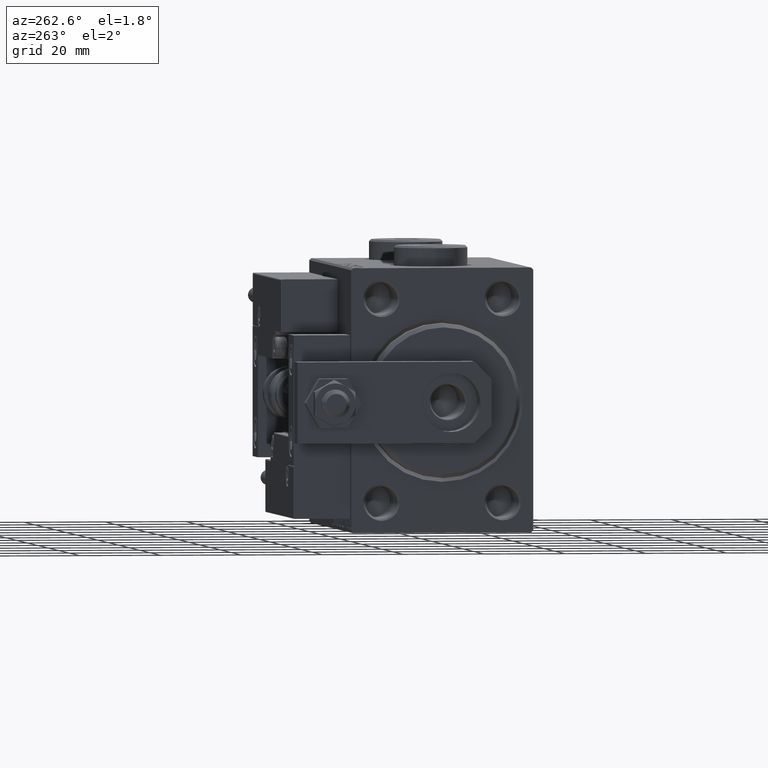
[diagram: clean part render]
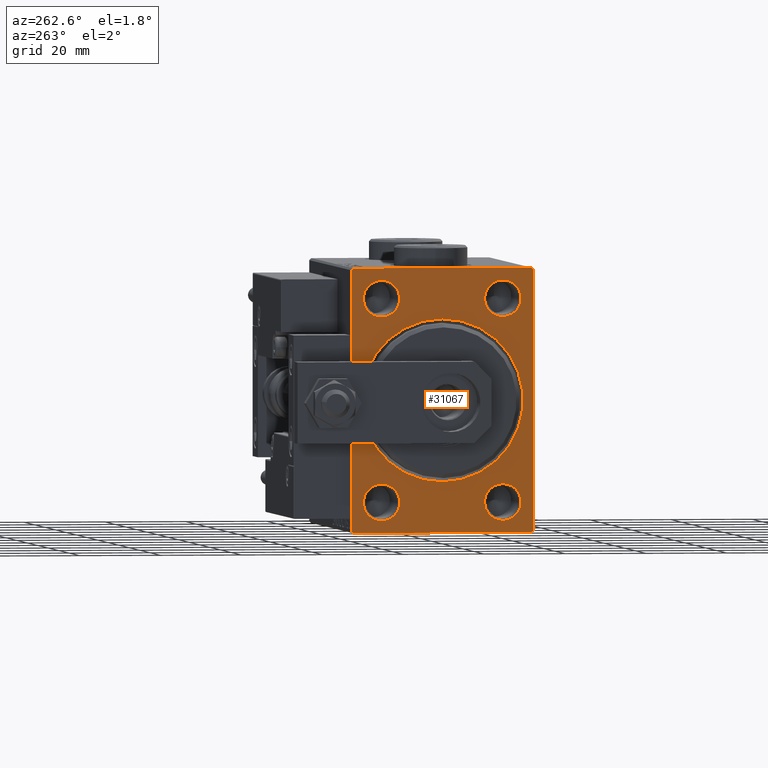
[diagram: same view with one face highlighted and labeled with its STEP entity id]
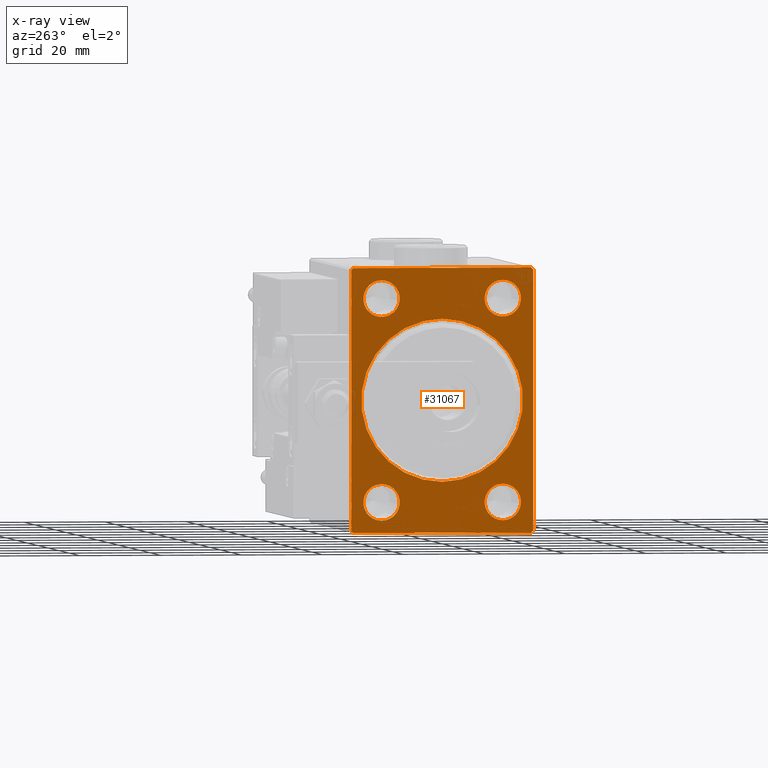
[diagram: x-ray of the same camera — body ghosted, the highlighted face saturated]
A machine part, auxiliary view. The second image highlights one B-rep face of the part: STEP entity #31067.
The next image is the same camera in x-ray: the body ghosted, the highlighted face saturated — about 0% of this face is hidden behind the body in this view.
In plain terms, the highlighted planar face has unit normal (1, 0, 0).
Its self-contained STEP definition (entity closure, byte-faithful):
#363 = VERTEX_POINT ( 'NONE', #7074 ) ;
#1055 = VERTEX_POINT ( 'NONE', #15444 ) ;
#1280 = CARTESIAN_POINT ( 'NONE',  ( 0.000000000000000000, -15.00000000000000000, -20.50000000000001066 ) ) ;
#1710 = VECTOR ( 'NONE', #49773, 1000.000000000000114 ) ;
#1906 = AXIS2_PLACEMENT_3D ( 'NONE', #44819, #8399, #30466 ) ;
#1917 = LINE ( 'NONE', #13073, #1710 ) ;
#2313 = AXIS2_PLACEMENT_3D ( 'NONE', #47783, #51794, #22367 ) ;
#3246 = CARTESIAN_POINT ( 'NONE',  ( 0.000000000000000000, 22.50000000000000711, -32.00000000000002132 ) ) ;
#3462 = DIRECTION ( 'NONE',  ( 1.000000000000000000, 0.000000000000000000, 0.000000000000000000 ) ) ;
#3847 = DIRECTION ( 'NONE',  ( 0.000000000000000000, 0.000000000000000000, -1.000000000000000000 ) ) ;
#4089 = CARTESIAN_POINT ( 'NONE',  ( 0.000000000000000000, 22.00000000000000711, -32.50000000000000711 ) ) ;
#4400 = AXIS2_PLACEMENT_3D ( 'NONE', #25804, #26063, #17825 ) ;
#4412 = DIRECTION ( 'NONE',  ( 0.000000000000000000, 0.000000000000000000, -1.000000000000000000 ) ) ;
#4414 = LINE ( 'NONE', #25146, #32167 ) ;
#5471 = DIRECTION ( 'NONE',  ( 0.000000000000000000, -1.067522139062650425E-16, 1.000000000000000000 ) ) ;
#5815 = VECTOR ( 'NONE', #50764, 1000.000000000000000 ) ;
#7074 = CARTESIAN_POINT ( 'NONE',  ( 0.000000000000000000, 15.00000000000000178, -20.49999999999996803 ) ) ;
#7340 = CARTESIAN_POINT ( 'NONE',  ( 0.000000000000000000, 15.00000000000000178, 25.00000000000000000 ) ) ;
#7515 = CIRCLE ( 'NONE', #49973, 4.500000000000031974 ) ;
#7516 = ORIENTED_EDGE ( 'NONE', *, *, #44080, .T. ) ;
#7904 = CARTESIAN_POINT ( 'NONE',  ( 0.000000000000000000, -15.00000000000000000, 20.50000000000001066 ) ) ;
#7983 = VERTEX_POINT ( 'NONE', #42472 ) ;
#8399 = DIRECTION ( 'NONE',  ( 1.000000000000000000, 0.000000000000000000, 0.000000000000000000 ) ) ;
#8602 = DIRECTION ( 'NONE',  ( 0.000000000000000000, 0.000000000000000000, -1.000000000000000000 ) ) ;
#8675 = CIRCLE ( 'NONE', #38428, 4.500000000000017764 ) ;
#9036 = PLANE ( 'NONE',  #34970 ) ;
#9304 = DIRECTION ( 'NONE',  ( 0.000000000000000000, 0.000000000000000000, -1.000000000000000000 ) ) ;
#9741 = DIRECTION ( 'NONE',  ( 1.000000000000000000, 0.000000000000000000, 0.000000000000000000 ) ) ;
#10082 = LINE ( 'NONE', #18332, #5815 ) ;
#10535 = CARTESIAN_POINT ( 'NONE',  ( 0.000000000000000000, 15.00000000000000178, -29.50000000000003197 ) ) ;
#10903 = AXIS2_PLACEMENT_3D ( 'NONE', #41849, #16849, #8602 ) ;
#10917 = CARTESIAN_POINT ( 'NONE',  ( 0.000000000000000000, 15.00000000000000178, 25.00000000000000000 ) ) ;
#10977 = EDGE_CURVE ( 'NONE', #30756, #37993, #47992, .T. ) ;
#11330 = DIRECTION ( 'NONE',  ( 1.000000000000000000, 0.000000000000000000, 0.000000000000000000 ) ) ;
#11816 = CARTESIAN_POINT ( 'NONE',  ( 0.000000000000000000, 0.000000000000000000, 0.000000000000000000 ) ) ;
#12076 = CARTESIAN_POINT ( 'NONE',  ( 0.000000000000000000, -15.00000000000000000, 29.49999999999999289 ) ) ;
#12529 = EDGE_CURVE ( 'NONE', #1055, #32353, #43790, .T. ) ;
#12749 = CARTESIAN_POINT ( 'NONE',  ( 0.000000000000000000, 0.000000000000000000, 0.000000000000000000 ) ) ;
#13073 = CARTESIAN_POINT ( 'NONE',  ( 0.000000000000000000, -22.49999999999999289, 31.99999999999998579 ) ) ;
#13203 = CARTESIAN_POINT ( 'NONE',  ( 0.000000000000000000, 0.000000000000000000, 0.000000000000000000 ) ) ;
#13333 = CIRCLE ( 'NONE', #2313, 4.499999999999990230 ) ;
#13387 = EDGE_CURVE ( 'NONE', #7983, #39284, #49954, .T. ) ;
#13530 = LINE ( 'NONE', #17254, #39169 ) ;
#13914 = CARTESIAN_POINT ( 'NONE',  ( 0.000000000000000000, -21.99999999999999289, -32.50000000000000711 ) ) ;
#14090 = ORIENTED_EDGE ( 'NONE', *, *, #37005, .F. ) ;
#14185 = VECTOR ( 'NONE', #33989, 1000.000000000000000 ) ;
#14408 = EDGE_CURVE ( 'NONE', #17493, #42669, #13333, .T. ) ;
#14433 = DIRECTION ( 'NONE',  ( -0.000000000000000000, -0.7071067811865524577, 0.7071067811865426878 ) ) ;
#14846 = DIRECTION ( 'NONE',  ( 1.000000000000000000, 0.000000000000000000, 0.000000000000000000 ) ) ;
#14954 = LINE ( 'NONE', #3246, #43106 ) ;
#15211 = DIRECTION ( 'NONE',  ( 0.000000000000000000, -0.7071067811865474617, -0.7071067811865474617 ) ) ;
#15410 = EDGE_LOOP ( 'NONE', ( #38435, #47677 ) ) ;
#15435 = DIRECTION ( 'NONE',  ( 0.000000000000000000, 0.000000000000000000, -1.000000000000000000 ) ) ;
#15444 = CARTESIAN_POINT ( 'NONE',  ( 0.000000000000000000, -22.49999999999999289, 31.99999999999998579 ) ) ;
#16349 = ORIENTED_EDGE ( 'NONE', *, *, #48650, .T. ) ;
#16499 = FACE_BOUND ( 'NONE', #17654, .T. ) ;
#16834 = DIRECTION ( 'NONE',  ( 0.000000000000000000, 0.000000000000000000, -1.000000000000000000 ) ) ;
#16844 = AXIS2_PLACEMENT_3D ( 'NONE', #11816, #40279, #3847 ) ;
#16849 = DIRECTION ( 'NONE',  ( 1.000000000000000000, 0.000000000000000000, 0.000000000000000000 ) ) ;
#17254 = CARTESIAN_POINT ( 'NONE',  ( 0.000000000000000000, 22.00000000000001421, 32.49999999999999289 ) ) ;
#17293 = FACE_OUTER_BOUND ( 'NONE', #25092, .T. ) ;
#17493 = VERTEX_POINT ( 'NONE', #7904 ) ;
#17654 = EDGE_LOOP ( 'NONE', ( #25715, #37294 ) ) ;
#17778 = CARTESIAN_POINT ( 'NONE',  ( 0.000000000000000000, -22.49999999999999289, -32.50000000000000711 ) ) ;
#17825 = DIRECTION ( 'NONE',  ( 0.000000000000000000, 0.000000000000000000, -1.000000000000000000 ) ) ;
#18332 = CARTESIAN_POINT ( 'NONE',  ( 0.000000000000000000, 22.50000000000000000, 32.49999999999999289 ) ) ;
#18769 = AXIS2_PLACEMENT_3D ( 'NONE', #7340, #11330, #51752 ) ;
#19133 = EDGE_CURVE ( 'NONE', #44939, #39284, #14954, .T. ) ;
#20465 = FACE_BOUND ( 'NONE', #45800, .T. ) ;
#20544 = EDGE_CURVE ( 'NONE', #363, #40359, #7515, .T. ) ;
#21621 = CARTESIAN_POINT ( 'NONE',  ( 0.000000000000000000, -15.00000000000000000, -25.00000000000000000 ) ) ;
#21971 = DIRECTION ( 'NONE',  ( 0.000000000000000000, 0.000000000000000000, -1.000000000000000000 ) ) ;
#22103 = AXIS2_PLACEMENT_3D ( 'NONE', #21621, #45540, #16834 ) ;
#22147 = LINE ( 'NONE', #13914, #35688 ) ;
#22295 = CARTESIAN_POINT ( 'NONE',  ( 0.000000000000000000, 15.00000000000000178, -25.00000000000000000 ) ) ;
#22367 = DIRECTION ( 'NONE',  ( 0.000000000000000000, 0.000000000000000000, -1.000000000000000000 ) ) ;
#22419 = VERTEX_POINT ( 'NONE', #25838 ) ;
#22507 = VERTEX_POINT ( 'NONE', #33803 ) ;
#23064 = ORIENTED_EDGE ( 'NONE', *, *, #24635, .T. ) ;
#24303 = CARTESIAN_POINT ( 'NONE',  ( 0.000000000000000000, 22.50000000000000000, 32.00000000000000711 ) ) ;
#24307 = VECTOR ( 'NONE', #4412, 1000.000000000000000 ) ;
#24507 = EDGE_CURVE ( 'NONE', #30300, #32360, #45000, .T. ) ;
#24635 = EDGE_CURVE ( 'NONE', #7983, #32353, #22147, .T. ) ;
#25092 = EDGE_LOOP ( 'NONE', ( #28216, #7516, #14090, #43847, #31262, #40948, #42189, #23064 ) ) ;
#25146 = CARTESIAN_POINT ( 'NONE',  ( 0.000000000000000000, 22.50000000000000711, -32.50000000000000711 ) ) ;
#25265 = FACE_BOUND ( 'NONE', #51370, .T. ) ;
#25415 = VERTEX_POINT ( 'NONE', #24303 ) ;
#25715 = ORIENTED_EDGE ( 'NONE', *, *, #39444, .T. ) ;
#25804 = CARTESIAN_POINT ( 'NONE',  ( 0.000000000000000000, -15.00000000000000000, -25.00000000000000000 ) ) ;
#25838 = CARTESIAN_POINT ( 'NONE',  ( 0.000000000000000000, 15.00000000000000178, 20.49999999999998224 ) ) ;
#26063 = DIRECTION ( 'NONE',  ( 1.000000000000000000, 0.000000000000000000, 0.000000000000000000 ) ) ;
#26173 = EDGE_CURVE ( 'NONE', #40594, #25415, #13530, .T. ) ;
#26552 = EDGE_LOOP ( 'NONE', ( #16349, #35473 ) ) ;
#28216 = ORIENTED_EDGE ( 'NONE', *, *, #12529, .F. ) ;
#28714 = FACE_BOUND ( 'NONE', #15410, .T. ) ;
#29257 = EDGE_CURVE ( 'NONE', #22419, #45858, #33205, .T. ) ;
#30300 = VERTEX_POINT ( 'NONE', #39084 ) ;
#30466 = DIRECTION ( 'NONE',  ( 0.000000000000000000, 0.000000000000000000, -1.000000000000000000 ) ) ;
#30756 = VERTEX_POINT ( 'NONE', #52219 ) ;
#31067 = ADVANCED_FACE ( 'NONE', ( #28714, #25265, #16499, #36702, #20465, #17293 ), #9036, .F. ) ;
#31262 = ORIENTED_EDGE ( 'NONE', *, *, #38294, .F. ) ;
#31299 = EDGE_CURVE ( 'NONE', #32360, #30300, #36659, .T. ) ;
#32167 = VECTOR ( 'NONE', #5471, 1000.000000000000000 ) ;
#32353 = VERTEX_POINT ( 'NONE', #46193 ) ;
#32360 = VERTEX_POINT ( 'NONE', #1280 ) ;
#32674 = DIRECTION ( 'NONE',  ( -0.000000000000000000, 0.7071067811865474617, -0.7071067811865474617 ) ) ;
#33205 = CIRCLE ( 'NONE', #18769, 4.500000000000017764 ) ;
#33803 = CARTESIAN_POINT ( 'NONE',  ( 0.000000000000000000, -21.99999999999997868, 32.49999999999998579 ) ) ;
#33989 = DIRECTION ( 'NONE',  ( 0.000000000000000000, 1.000000000000000000, 0.000000000000000000 ) ) ;
#34970 = AXIS2_PLACEMENT_3D ( 'NONE', #12749, #44922, #9304 ) ;
#35473 = ORIENTED_EDGE ( 'NONE', *, *, #29257, .T. ) ;
#35688 = VECTOR ( 'NONE', #14433, 1000.000000000000000 ) ;
#36659 = CIRCLE ( 'NONE', #4400, 4.499999999999990230 ) ;
#36702 = FACE_BOUND ( 'NONE', #26552, .T. ) ;
#36800 = ORIENTED_EDGE ( 'NONE', *, *, #20544, .T. ) ;
#37005 = EDGE_CURVE ( 'NONE', #40594, #22507, #10082, .T. ) ;
#37194 = CIRCLE ( 'NONE', #10903, 4.499999999999990230 ) ;
#37294 = ORIENTED_EDGE ( 'NONE', *, *, #14408, .T. ) ;
#37993 = VERTEX_POINT ( 'NONE', #41162 ) ;
#38294 = EDGE_CURVE ( 'NONE', #44939, #25415, #4414, .T. ) ;
#38428 = AXIS2_PLACEMENT_3D ( 'NONE', #10917, #3462, #15435 ) ;
#38435 = ORIENTED_EDGE ( 'NONE', *, *, #10977, .T. ) ;
#38529 = DIRECTION ( 'NONE',  ( 0.000000000000000000, 0.000000000000000000, -1.000000000000000000 ) ) ;
#38687 = AXIS2_PLACEMENT_3D ( 'NONE', #13203, #9741, #21971 ) ;
#38885 = CARTESIAN_POINT ( 'NONE',  ( 0.000000000000000000, 22.50000000000000711, -32.00000000000002132 ) ) ;
#39084 = CARTESIAN_POINT ( 'NONE',  ( 0.000000000000000000, -15.00000000000000000, -29.49999999999999289 ) ) ;
#39169 = VECTOR ( 'NONE', #32674, 1000.000000000000114 ) ;
#39284 = VERTEX_POINT ( 'NONE', #4089 ) ;
#39444 = EDGE_CURVE ( 'NONE', #42669, #17493, #37194, .T. ) ;
#40279 = DIRECTION ( 'NONE',  ( 1.000000000000000000, 0.000000000000000000, 0.000000000000000000 ) ) ;
#40298 = ORIENTED_EDGE ( 'NONE', *, *, #31299, .T. ) ;
#40359 = VERTEX_POINT ( 'NONE', #10535 ) ;
#40448 = EDGE_CURVE ( 'NONE', #37993, #30756, #46605, .T. ) ;
#40594 = VERTEX_POINT ( 'NONE', #42644 ) ;
#40948 = ORIENTED_EDGE ( 'NONE', *, *, #19133, .T. ) ;
#41162 = CARTESIAN_POINT ( 'NONE',  ( 0.000000000000000000, 2.449293598294705330E-15, -19.99999999999998934 ) ) ;
#41849 = CARTESIAN_POINT ( 'NONE',  ( 0.000000000000000000, -15.00000000000000000, 25.00000000000000000 ) ) ;
#42189 = ORIENTED_EDGE ( 'NONE', *, *, #13387, .F. ) ;
#42472 = CARTESIAN_POINT ( 'NONE',  ( 0.000000000000000000, -21.99999999999999289, -32.50000000000000711 ) ) ;
#42644 = CARTESIAN_POINT ( 'NONE',  ( 0.000000000000000000, 22.00000000000001421, 32.49999999999999289 ) ) ;
#42669 = VERTEX_POINT ( 'NONE', #12076 ) ;
#43106 = VECTOR ( 'NONE', #15211, 1000.000000000000114 ) ;
#43790 = LINE ( 'NONE', #44543, #24307 ) ;
#43847 = ORIENTED_EDGE ( 'NONE', *, *, #26173, .T. ) ;
#43961 = CARTESIAN_POINT ( 'NONE',  ( 0.000000000000000000, 15.00000000000000178, 29.50000000000001776 ) ) ;
#44080 = EDGE_CURVE ( 'NONE', #1055, #22507, #1917, .T. ) ;
#44543 = CARTESIAN_POINT ( 'NONE',  ( 0.000000000000000000, -22.49999999999999289, 32.49999999999998579 ) ) ;
#44819 = CARTESIAN_POINT ( 'NONE',  ( 0.000000000000000000, 15.00000000000000178, -25.00000000000000000 ) ) ;
#44922 = DIRECTION ( 'NONE',  ( 1.000000000000000000, 0.000000000000000000, 0.000000000000000000 ) ) ;
#44939 = VERTEX_POINT ( 'NONE', #38885 ) ;
#45000 = CIRCLE ( 'NONE', #22103, 4.499999999999990230 ) ;
#45297 = ORIENTED_EDGE ( 'NONE', *, *, #49131, .T. ) ;
#45540 = DIRECTION ( 'NONE',  ( 1.000000000000000000, 0.000000000000000000, 0.000000000000000000 ) ) ;
#45800 = EDGE_LOOP ( 'NONE', ( #36800, #45297 ) ) ;
#45858 = VERTEX_POINT ( 'NONE', #43961 ) ;
#46193 = CARTESIAN_POINT ( 'NONE',  ( 0.000000000000000000, -22.49999999999999289, -32.00000000000001421 ) ) ;
#46605 = CIRCLE ( 'NONE', #16844, 19.99999999999998934 ) ;
#46790 = ORIENTED_EDGE ( 'NONE', *, *, #24507, .T. ) ;
#47677 = ORIENTED_EDGE ( 'NONE', *, *, #40448, .T. ) ;
#47783 = CARTESIAN_POINT ( 'NONE',  ( 0.000000000000000000, -15.00000000000000000, 25.00000000000000000 ) ) ;
#47992 = CIRCLE ( 'NONE', #38687, 19.99999999999998934 ) ;
#48650 = EDGE_CURVE ( 'NONE', #45858, #22419, #8675, .T. ) ;
#49131 = EDGE_CURVE ( 'NONE', #40359, #363, #51185, .T. ) ;
#49773 = DIRECTION ( 'NONE',  ( -0.000000000000000000, 0.7071067811865474617, 0.7071067811865474617 ) ) ;
#49954 = LINE ( 'NONE', #17778, #14185 ) ;
#49973 = AXIS2_PLACEMENT_3D ( 'NONE', #22295, #14846, #38529 ) ;
#50764 = DIRECTION ( 'NONE',  ( 0.000000000000000000, -1.000000000000000000, -1.541976423090495633E-16 ) ) ;
#51185 = CIRCLE ( 'NONE', #1906, 4.500000000000031974 ) ;
#51370 = EDGE_LOOP ( 'NONE', ( #40298, #46790 ) ) ;
#51752 = DIRECTION ( 'NONE',  ( 0.000000000000000000, 0.000000000000000000, -1.000000000000000000 ) ) ;
#51794 = DIRECTION ( 'NONE',  ( 1.000000000000000000, 0.000000000000000000, 0.000000000000000000 ) ) ;
#52219 = CARTESIAN_POINT ( 'NONE',  ( 0.000000000000000000, 0.000000000000000000, 19.99999999999998934 ) ) ;